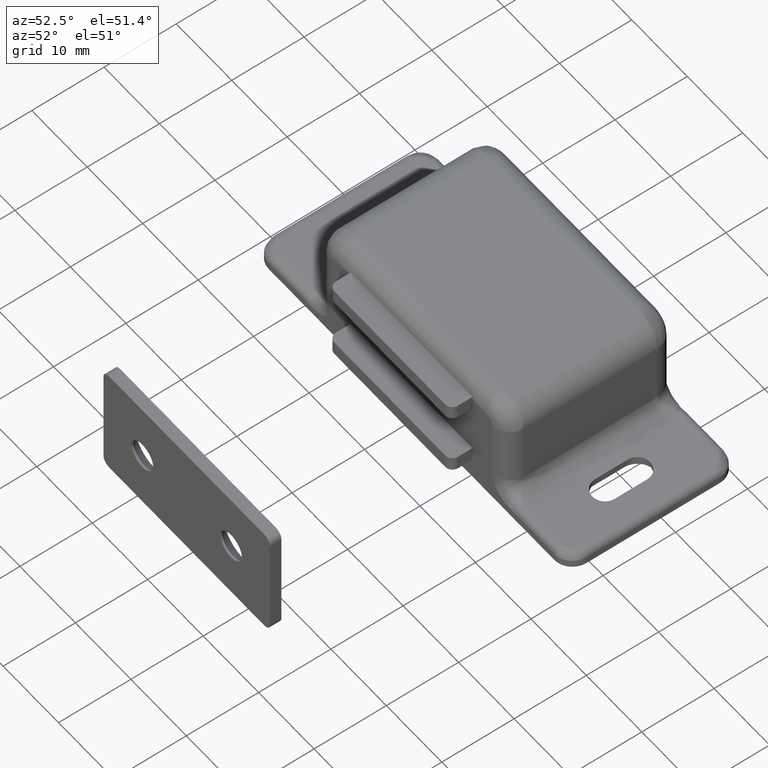
[diagram: clean part render]
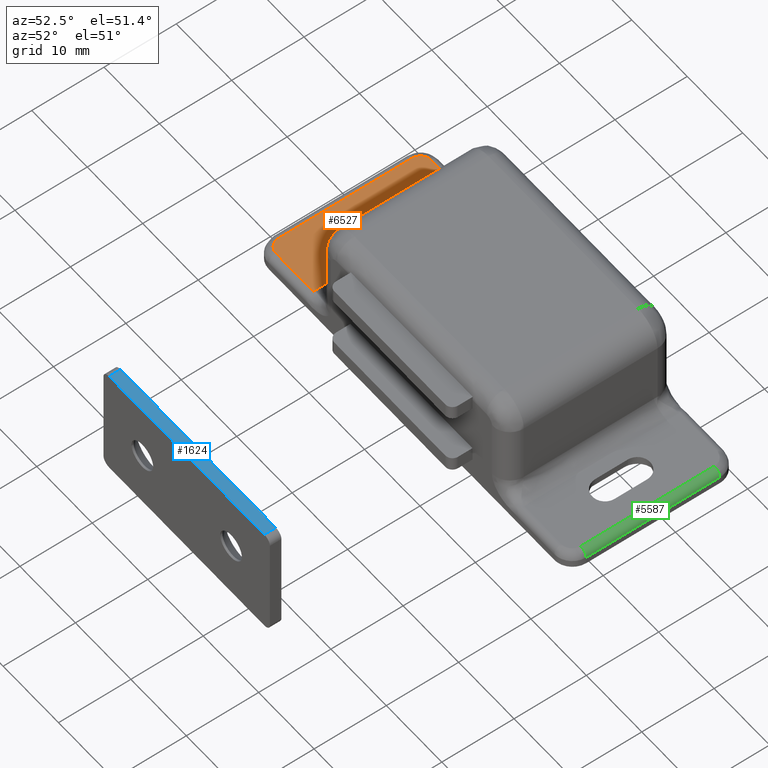
[diagram: same view with three faces highlighted in distinct colors, each labeled with its STEP entity id]
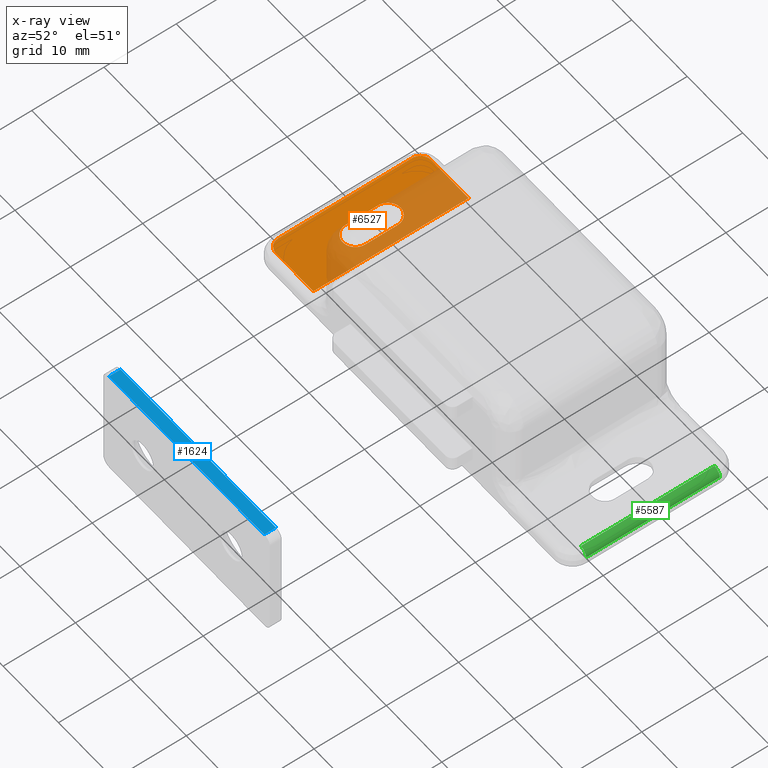
[diagram: x-ray of the same camera — body ghosted, the three highlighted faces saturated]
A machine part, auxiliary view with three faces highlighted in distinct colors.
The next image is the same camera in x-ray (body ghosted, the three faces saturated) — at least one of them is partly hidden behind the body in this view.
Their STEP definitions:

[orange] entity #6527 — the highlighted face is a freeform B-spline surface patch.
#1703=CARTESIAN_POINT('',(-20.750004000000001,-9.500000000000000,2.0));
#1704=VERTEX_POINT('',#1703);
#1710=CARTESIAN_POINT('',(-24.250004000000001,-9.500000000000000,2.0));
#1711=VERTEX_POINT('',#1710);
#1712=CARTESIAN_POINT('',(-20.750004000000001,-9.500000000000000,2.0));
#1713=CARTESIAN_POINT('',(-20.750004000000008,-7.750000000000001,2.0));
#1714=CARTESIAN_POINT('',(-22.500004000000001,-7.750000000000000,2.0));
#1715=CARTESIAN_POINT('',(-24.250003999999997,-7.750000000000001,2.0));
#1716=CARTESIAN_POINT('',(-24.250004000000001,-9.500000000000000,2.0));
#1724=(BOUNDED_CURVE()B_SPLINE_CURVE(2,(#1712,#1713,#1714,#1715,#1716),.UNSPECIFIED.,.F.,.U.)B_SPLINE_CURVE_WITH_KNOTS((3,2,3),(0.0,0.500000000000000,1.0),.UNSPECIFIED.)CURVE()GEOMETRIC_REPRESENTATION_ITEM()RATIONAL_B_SPLINE_CURVE((1.0,0.707106781186547,1.0,0.707106781186547,1.0))REPRESENTATION_ITEM(''));
#1725=EDGE_CURVE('',#1704,#1711,#1724,.T.);
#1741=CARTESIAN_POINT('',(-24.250003999999951,-13.999999725110520,2.0));
#1742=VERTEX_POINT('',#1741);
#1743=CARTESIAN_POINT('',(-24.250003999999951,-13.999999725110520,2.0));
#1744=CARTESIAN_POINT('',(-24.250004000000001,-9.500000000000000,2.0));
#1745=QUASI_UNIFORM_CURVE('',1,(#1743,#1744),.UNSPECIFIED.,.F.,.U.);
#1746=EDGE_CURVE('',#1742,#1711,#1745,.T.);
#1801=CARTESIAN_POINT('',(-20.750004000000001,-13.999999694567260,2.0));
#1802=VERTEX_POINT('',#1801);
#1803=CARTESIAN_POINT('',(-24.250003999999979,-13.999999725110520,2.0));
#1804=CARTESIAN_POINT('',(-24.250004158707515,-15.010362825152843,2.000000000000000));
#1805=CARTESIAN_POINT('',(-23.375004070536679,-15.515544415898400,2.0));
#1806=CARTESIAN_POINT('',(-22.500003982365850,-16.020726006643947,2.000000000000000));
#1807=CARTESIAN_POINT('',(-21.625003903012090,-15.515544400626769,2.0));
#1808=CARTESIAN_POINT('',(-20.750003823658329,-15.010362794609593,2.000000000000000));
#1809=CARTESIAN_POINT('',(-20.750004000000029,-13.999999694567260,2.0));
#1817=(BOUNDED_CURVE()B_SPLINE_CURVE(2,(#1803,#1804,#1805,#1806,#1807,#1808,#1809),.UNSPECIFIED.,.F.,.U.)B_SPLINE_CURVE_WITH_KNOTS((3,2,2,3),(0.0,0.333333333333333,0.666666666666667,1.0),.UNSPECIFIED.)CURVE()GEOMETRIC_REPRESENTATION_ITEM()RATIONAL_B_SPLINE_CURVE((1.0,0.866025376150046,1.0,0.866025376150046,1.0,0.866025376150046,1.0))REPRESENTATION_ITEM(''));
#1818=EDGE_CURVE('',#1742,#1802,#1817,.T.);
#1834=CARTESIAN_POINT('',(-20.750004000000001,-9.500000000000000,2.0));
#1835=CARTESIAN_POINT('',(-20.750004000000001,-13.999999694567260,2.0));
#1836=QUASI_UNIFORM_CURVE('',1,(#1834,#1835),.UNSPECIFIED.,.F.,.U.);
#1837=EDGE_CURVE('',#1704,#1802,#1836,.T.);
#4482=CARTESIAN_POINT('',(-19.000004000000001,-22.500000000000000,2.0));
#4483=VERTEX_POINT('',#4482);
#4543=CARTESIAN_POINT('',(-25.750004000000001,-22.500000000000000,2.0));
#4544=VERTEX_POINT('',#4543);
#4566=CARTESIAN_POINT('',(-25.750004000000001,-22.500000000000000,2.0));
#4567=CARTESIAN_POINT('',(-19.000004000000001,-22.500000000000000,2.0));
#4568=QUASI_UNIFORM_CURVE('',1,(#4566,#4567),.UNSPECIFIED.,.F.,.U.);
#4569=EDGE_CURVE('',#4544,#4483,#4568,.T.);
#4636=CARTESIAN_POINT('',(-27.250004000000001,-21.0,2.0));
#4637=VERTEX_POINT('',#4636);
#4667=CARTESIAN_POINT('',(-27.250004000000001,-21.0,2.0));
#4668=CARTESIAN_POINT('',(-27.250003999999993,-22.500000000000000,2.000000000000000));
#4669=CARTESIAN_POINT('',(-25.750004000000001,-22.500000000000000,2.0));
#4677=(BOUNDED_CURVE()B_SPLINE_CURVE(2,(#4667,#4668,#4669),.UNSPECIFIED.,.F.,.U.)CURVE()GEOMETRIC_REPRESENTATION_ITEM()QUASI_UNIFORM_CURVE()RATIONAL_B_SPLINE_CURVE((1.0,0.707106781186548,1.0))REPRESENTATION_ITEM(''));
#4678=EDGE_CURVE('',#4637,#4544,#4677,.T.);
#4777=CARTESIAN_POINT('',(-27.250004000000001,-2.500000000000000,2.0));
#4778=VERTEX_POINT('',#4777);
#4800=CARTESIAN_POINT('',(-27.250004000000001,-2.500000000000000,2.0));
#4801=CARTESIAN_POINT('',(-27.250004000000001,-21.0,2.0));
#4802=QUASI_UNIFORM_CURVE('',1,(#4800,#4801),.UNSPECIFIED.,.F.,.U.);
#4803=EDGE_CURVE('',#4778,#4637,#4802,.T.);
#4825=CARTESIAN_POINT('',(-25.750004000000001,-1.0,2.0));
#4826=VERTEX_POINT('',#4825);
#4856=CARTESIAN_POINT('',(-25.750004000000001,-1.0,2.0));
#4857=CARTESIAN_POINT('',(-27.250003999999993,-1.0,2.000000000000000));
#4858=CARTESIAN_POINT('',(-27.250004000000001,-2.500000000000000,2.0));
#4866=(BOUNDED_CURVE()B_SPLINE_CURVE(2,(#4856,#4857,#4858),.UNSPECIFIED.,.F.,.U.)CURVE()GEOMETRIC_REPRESENTATION_ITEM()QUASI_UNIFORM_CURVE()RATIONAL_B_SPLINE_CURVE((1.0,0.707106781186548,1.0))REPRESENTATION_ITEM(''));
#4867=EDGE_CURVE('',#4826,#4778,#4866,.T.);
#4982=CARTESIAN_POINT('',(-19.000004000000001,-1.0,2.0));
#4983=VERTEX_POINT('',#4982);
#5005=CARTESIAN_POINT('',(-19.000004000000001,-1.0,2.0));
#5006=CARTESIAN_POINT('',(-25.750004000000001,-1.0,2.0));
#5007=QUASI_UNIFORM_CURVE('',1,(#5005,#5006),.UNSPECIFIED.,.F.,.U.);
#5008=EDGE_CURVE('',#4983,#4826,#5007,.T.);
#5988=CARTESIAN_POINT('',(-19.000004000000001,-22.500000000000000,2.0));
#5989=CARTESIAN_POINT('',(-19.000004000000001,-1.0,2.0));
#5990=QUASI_UNIFORM_CURVE('',1,(#5988,#5989),.UNSPECIFIED.,.F.,.U.);
#5991=EDGE_CURVE('',#4483,#4983,#5990,.T.);
#6508=CARTESIAN_POINT('',(-27.662091329119711,0.073924958328827,2.0));
#6509=CARTESIAN_POINT('',(-18.587916302076561,0.073924958328827,2.0));
#6510=CARTESIAN_POINT('',(-27.662091329119711,-23.573925535003760,2.0));
#6511=CARTESIAN_POINT('',(-18.587916302076561,-23.573925535003760,2.0));
#6512=B_SPLINE_SURFACE_WITH_KNOTS('',1,1,((#6508,#6510),(#6509,#6511)),.UNSPECIFIED.,.F.,.F.,.U.,(2,2),(2,2),(0.0,9.074175027043150),(0.0,23.647850493332591),.UNSPECIFIED.);
#6513=ORIENTED_EDGE('',*,*,#5991,.T.);
#6514=ORIENTED_EDGE('',*,*,#5008,.T.);
#6515=ORIENTED_EDGE('',*,*,#4867,.T.);
#6516=ORIENTED_EDGE('',*,*,#4803,.T.);
#6517=ORIENTED_EDGE('',*,*,#4678,.T.);
#6518=ORIENTED_EDGE('',*,*,#4569,.T.);
#6519=EDGE_LOOP('',(#6513,#6514,#6515,#6516,#6517,#6518));
#6520=FACE_OUTER_BOUND('',#6519,.T.);
#6521=ORIENTED_EDGE('',*,*,#1837,.T.);
#6522=ORIENTED_EDGE('',*,*,#1818,.F.);
#6523=ORIENTED_EDGE('',*,*,#1746,.T.);
#6524=ORIENTED_EDGE('',*,*,#1725,.F.);
#6525=EDGE_LOOP('',(#6521,#6522,#6523,#6524));
#6526=FACE_BOUND('',#6525,.T.);
#6527=ADVANCED_FACE('',(#6520,#6526),#6512,.F.);

[blue] entity #1624 — the highlighted face is a freeform B-spline surface patch.
#1238=CARTESIAN_POINT('',(-14.000000052359880,-26.500000000000000,16.500000000000000));
#1239=VERTEX_POINT('',#1238);
#1240=CARTESIAN_POINT('',(13.999999947640120,-26.500000000000000,16.500000000000000));
#1241=VERTEX_POINT('',#1240);
#1242=CARTESIAN_POINT('',(-14.000000052359880,-26.500000000000000,16.500000000000000));
#1243=CARTESIAN_POINT('',(13.999999947640120,-26.500000000000000,16.500000000000000));
#1244=QUASI_UNIFORM_CURVE('',1,(#1242,#1243),.UNSPECIFIED.,.F.,.U.);
#1245=EDGE_CURVE('',#1239,#1241,#1244,.T.);
#1352=CARTESIAN_POINT('',(-14.000000052359880,-28.100005999999851,16.500000000000000));
#1353=VERTEX_POINT('',#1352);
#1354=CARTESIAN_POINT('',(13.999999947640120,-28.100005999999851,16.500000000000000));
#1355=VERTEX_POINT('',#1354);
#1356=CARTESIAN_POINT('',(-14.000000052359880,-28.100005999999851,16.500000000000000));
#1357=CARTESIAN_POINT('',(13.999999947640120,-28.100005999999851,16.500000000000000));
#1358=QUASI_UNIFORM_CURVE('',1,(#1356,#1357),.UNSPECIFIED.,.F.,.U.);
#1359=EDGE_CURVE('',#1353,#1355,#1358,.T.);
#1482=CARTESIAN_POINT('',(-14.000000052359880,-28.100005999999851,16.500000000000000));
#1483=CARTESIAN_POINT('',(-14.000000052359880,-26.500000000000000,16.500000000000000));
#1484=QUASI_UNIFORM_CURVE('',1,(#1482,#1483),.UNSPECIFIED.,.F.,.U.);
#1485=EDGE_CURVE('',#1353,#1239,#1484,.T.);
#1603=CARTESIAN_POINT('',(13.999999947640120,-28.100005999999851,16.500000000000000));
#1604=CARTESIAN_POINT('',(13.999999947640120,-26.500000000000000,16.500000000000000));
#1605=QUASI_UNIFORM_CURVE('',1,(#1603,#1604),.UNSPECIFIED.,.F.,.U.);
#1606=EDGE_CURVE('',#1355,#1241,#1605,.T.);
#1613=CARTESIAN_POINT('',(-15.398599998090450,-28.179926416756420,16.500000000000000));
#1614=CARTESIAN_POINT('',(15.398600644389211,-28.179926416756420,16.500000000000000));
#1615=CARTESIAN_POINT('',(-15.398599998090450,-26.420079654769282,16.500000000000000));
#1616=CARTESIAN_POINT('',(15.398600644389211,-26.420079654769282,16.500000000000000));
#1617=B_SPLINE_SURFACE_WITH_KNOTS('',1,1,((#1613,#1615),(#1614,#1616)),.UNSPECIFIED.,.F.,.F.,.U.,(2,2),(2,2),(0.0,30.797200642479659),(0.041708272366598,0.958291690380499),.UNSPECIFIED.);
#1618=ORIENTED_EDGE('',*,*,#1245,.F.);
#1619=ORIENTED_EDGE('',*,*,#1485,.F.);
#1620=ORIENTED_EDGE('',*,*,#1359,.T.);
#1621=ORIENTED_EDGE('',*,*,#1606,.T.);
#1622=EDGE_LOOP('',(#1618,#1619,#1620,#1621));
#1623=FACE_OUTER_BOUND('',#1622,.T.);
#1624=ADVANCED_FACE('',(#1623),#1617,.T.);

[green] entity #5587 — the highlighted face is a freeform B-spline surface patch.
#5451=CARTESIAN_POINT('',(28.250000000000000,-21.0,1.0));
#5452=VERTEX_POINT('',#5451);
#5453=CARTESIAN_POINT('',(27.250000000000000,-21.0,2.0));
#5454=VERTEX_POINT('',#5453);
#5455=CARTESIAN_POINT('',(28.250000000000000,-21.0,1.0));
#5456=CARTESIAN_POINT('',(28.250000000000000,-21.000000000000004,2.000000000000000));
#5457=CARTESIAN_POINT('',(27.250000000000000,-21.0,2.0));
#5465=(BOUNDED_CURVE()B_SPLINE_CURVE(2,(#5455,#5456,#5457),.UNSPECIFIED.,.F.,.U.)CURVE()GEOMETRIC_REPRESENTATION_ITEM()QUASI_UNIFORM_CURVE()RATIONAL_B_SPLINE_CURVE((1.0,0.707106781186548,1.0))REPRESENTATION_ITEM(''));
#5466=EDGE_CURVE('',#5452,#5454,#5465,.T.);
#5543=CARTESIAN_POINT('',(27.206380612634661,-2.037499999999999,1.999048221581858));
#5544=CARTESIAN_POINT('',(27.206380612634661,-21.474062499999999,1.999048221581858));
#5545=CARTESIAN_POINT('',(28.326060264459027,-2.037500000000001,2.047934490935986));
#5546=CARTESIAN_POINT('',(28.326060264459027,-21.474062500000009,2.047934490935986));
#5547=CARTESIAN_POINT('',(28.247542913231918,-2.037499999999999,0.929941907956481));
#5548=CARTESIAN_POINT('',(28.247542913231918,-21.474062500000002,0.929941907956481));
#5556=(BOUNDED_SURFACE()B_SPLINE_SURFACE(1,2,((#5543,#5545,#5547),(#5544,#5546,#5548)),.UNSPECIFIED.,.F.,.F.,.U.)B_SPLINE_SURFACE_WITH_KNOTS((2,2),(3,3),(0.0,19.436562500000001),(0.0,0.994386594966985),.UNSPECIFIED.)GEOMETRIC_REPRESENTATION_ITEM()RATIONAL_B_SPLINE_SURFACE(((1.0,0.664513898535122,0.996233561259061),(1.0,0.664513898535122,0.996233561259061)))REPRESENTATION_ITEM('')SURFACE());
#5557=CARTESIAN_POINT('',(28.250000000000000,-2.500000000000000,1.0));
#5558=VERTEX_POINT('',#5557);
#5559=CARTESIAN_POINT('',(27.250000000000000,-2.500000000000000,2.0));
#5560=VERTEX_POINT('',#5559);
#5561=CARTESIAN_POINT('',(28.250000000000000,-2.500000000000000,1.0));
#5562=CARTESIAN_POINT('',(28.250000000000000,-2.500000000000000,2.000000000000000));
#5563=CARTESIAN_POINT('',(27.250000000000000,-2.500000000000000,2.0));
#5571=(BOUNDED_CURVE()B_SPLINE_CURVE(2,(#5561,#5562,#5563),.UNSPECIFIED.,.F.,.U.)CURVE()GEOMETRIC_REPRESENTATION_ITEM()QUASI_UNIFORM_CURVE()RATIONAL_B_SPLINE_CURVE((1.0,0.707106781186548,1.0))REPRESENTATION_ITEM(''));
#5572=EDGE_CURVE('',#5558,#5560,#5571,.T.);
#5573=ORIENTED_EDGE('',*,*,#5572,.T.);
#5574=CARTESIAN_POINT('',(27.250000000000000,-21.0,2.0));
#5575=CARTESIAN_POINT('',(27.250000000000000,-2.500000000000000,2.0));
#5576=QUASI_UNIFORM_CURVE('',1,(#5574,#5575),.UNSPECIFIED.,.F.,.U.);
#5577=EDGE_CURVE('',#5454,#5560,#5576,.T.);
#5578=ORIENTED_EDGE('',*,*,#5577,.F.);
#5579=ORIENTED_EDGE('',*,*,#5466,.F.);
#5580=CARTESIAN_POINT('',(28.250000000000000,-2.500000000000000,1.0));
#5581=CARTESIAN_POINT('',(28.250000000000000,-21.0,1.0));
#5582=QUASI_UNIFORM_CURVE('',1,(#5580,#5581),.UNSPECIFIED.,.F.,.U.);
#5583=EDGE_CURVE('',#5558,#5452,#5582,.T.);
#5584=ORIENTED_EDGE('',*,*,#5583,.F.);
#5585=EDGE_LOOP('',(#5573,#5578,#5579,#5584));
#5586=FACE_OUTER_BOUND('',#5585,.T.);
#5587=ADVANCED_FACE('',(#5586),#5556,.T.);